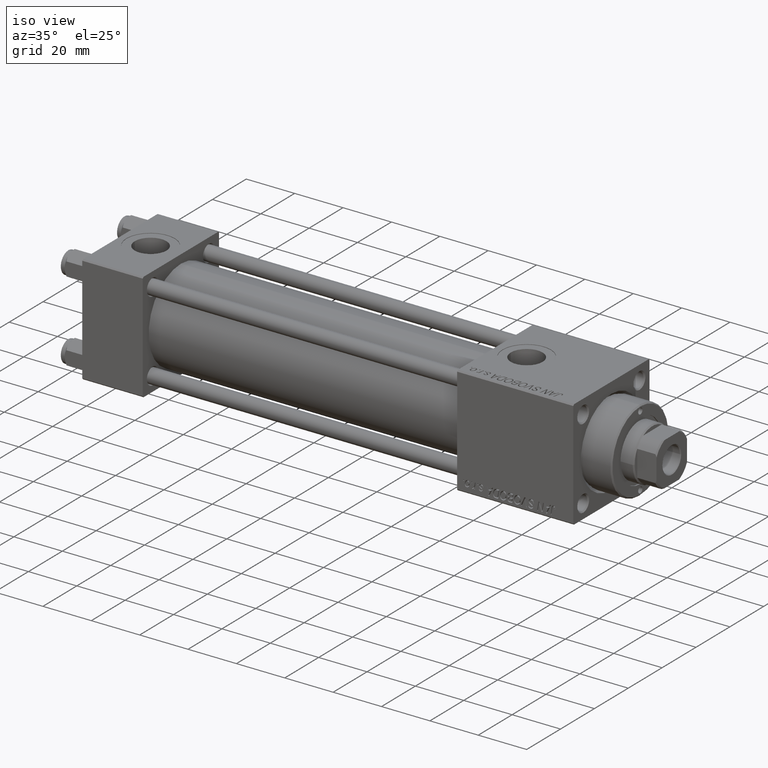
[diagram: clean part render]
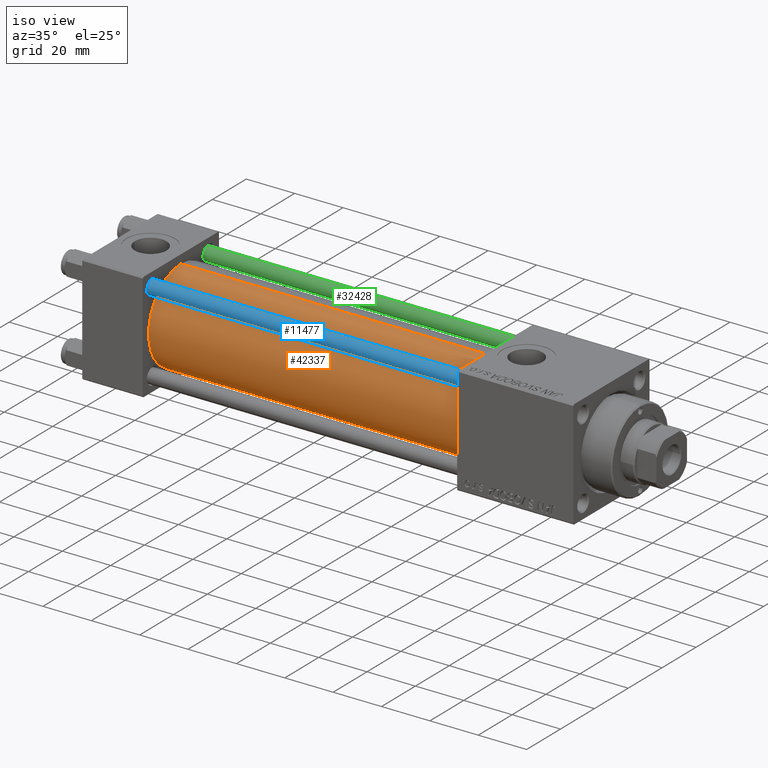
[diagram: same view with three faces highlighted in distinct colors, each labeled with its STEP entity id]
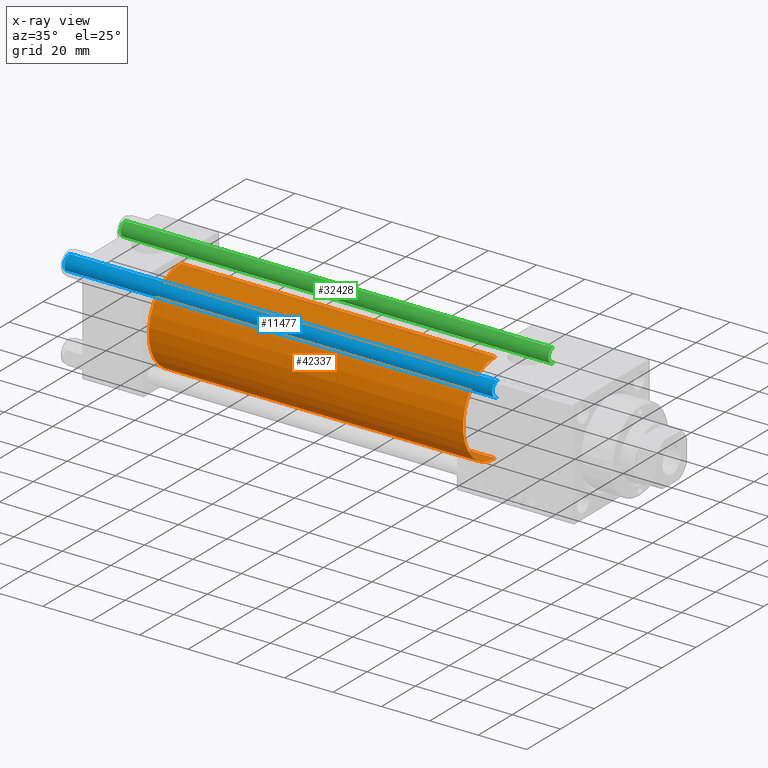
[diagram: x-ray of the same camera — body ghosted, the three highlighted faces saturated]
A machine part, iso view with three faces highlighted in distinct colors.
The next image is the same camera in x-ray (body ghosted, the three faces saturated) — at least one of them is partly hidden behind the body in this view.
Their STEP definitions:

[orange] entity #42337 — the highlighted cylindrical surface (partial cylindrical patch) has radius 19 mm, axis along (-1, -0, -0).
#149 = DIRECTION ( 'NONE',  ( -1.000000000000000000, -0.000000000000000000, -0.000000000000000000 ) ) ;
#629 = DIRECTION ( 'NONE',  ( 1.000000000000000000, 0.000000000000000000, 0.000000000000000000 ) ) ;
#1254 = ORIENTED_EDGE ( 'NONE', *, *, #14401, .F. ) ;
#3586 = AXIS2_PLACEMENT_3D ( 'NONE', #17115, #629, #34693 ) ;
#6762 = EDGE_LOOP ( 'NONE', ( #17592, #1254, #14535, #36498 ) ) ;
#10790 = VERTEX_POINT ( 'NONE', #11104 ) ;
#11104 = CARTESIAN_POINT ( 'NONE',  ( 155.0000000000000000, -2.752562955852396712E-16, -19.00000000000000000 ) ) ;
#11338 = LINE ( 'NONE', #27052, #12521 ) ;
#12011 = CARTESIAN_POINT ( 'NONE',  ( 24.99999999999999289, -2.602085213965210642E-15, 19.00000000000000000 ) ) ;
#12521 = VECTOR ( 'NONE', #32162, 1000.000000000000000 ) ;
#14401 = EDGE_CURVE ( 'NONE', #22424, #10790, #50265, .T. ) ;
#14535 = ORIENTED_EDGE ( 'NONE', *, *, #31868, .T. ) ;
#15344 = FACE_OUTER_BOUND ( 'NONE', #6762, .T. ) ;
#16233 = DIRECTION ( 'NONE',  ( 0.000000000000000000, 0.000000000000000000, 1.000000000000000000 ) ) ;
#17115 = CARTESIAN_POINT ( 'NONE',  ( 155.0000000000000000, -2.602085213965210642E-15, 0.000000000000000000 ) ) ;
#17592 = ORIENTED_EDGE ( 'NONE', *, *, #30774, .F. ) ;
#21382 = VERTEX_POINT ( 'NONE', #12011 ) ;
#22424 = VERTEX_POINT ( 'NONE', #51249 ) ;
#23295 = DIRECTION ( 'NONE',  ( 1.000000000000000000, -0.000000000000000000, 0.000000000000000000 ) ) ;
#25940 = LINE ( 'NONE', #45628, #34202 ) ;
#27052 = CARTESIAN_POINT ( 'NONE',  ( 155.0000000000000000, -2.752562955852396712E-16, -19.00000000000000000 ) ) ;
#27811 = DIRECTION ( 'NONE',  ( -1.000000000000000000, -0.000000000000000000, -0.000000000000000000 ) ) ;
#28071 = DIRECTION ( 'NONE',  ( 0.000000000000000000, 0.000000000000000000, 1.000000000000000000 ) ) ;
#28182 = CIRCLE ( 'NONE', #39409, 19.00000000000000000 ) ;
#29761 = CARTESIAN_POINT ( 'NONE',  ( 24.99999999999999289, -2.752562955852396712E-16, -19.00000000000000000 ) ) ;
#30774 = EDGE_CURVE ( 'NONE', #10790, #33103, #11338, .T. ) ;
#31859 = CYLINDRICAL_SURFACE ( 'NONE', #51220, 19.00000000000000000 ) ;
#31868 = EDGE_CURVE ( 'NONE', #22424, #21382, #25940, .T. ) ;
#32129 = CARTESIAN_POINT ( 'NONE',  ( 155.0000000000000000, -2.602085213965210642E-15, 0.000000000000000000 ) ) ;
#32162 = DIRECTION ( 'NONE',  ( -1.000000000000000000, -0.000000000000000000, -0.000000000000000000 ) ) ;
#32846 = EDGE_CURVE ( 'NONE', #21382, #33103, #28182, .T. ) ;
#33103 = VERTEX_POINT ( 'NONE', #29761 ) ;
#34202 = VECTOR ( 'NONE', #149, 1000.000000000000000 ) ;
#34693 = DIRECTION ( 'NONE',  ( 0.000000000000000000, 0.000000000000000000, -1.000000000000000000 ) ) ;
#36498 = ORIENTED_EDGE ( 'NONE', *, *, #32846, .T. ) ;
#39409 = AXIS2_PLACEMENT_3D ( 'NONE', #48492, #23295, #16233 ) ;
#42337 = ADVANCED_FACE ( 'NONE', ( #15344 ), #31859, .T. ) ;
#45628 = CARTESIAN_POINT ( 'NONE',  ( 155.0000000000000000, -2.602085213965210642E-15, 19.00000000000000000 ) ) ;
#48492 = CARTESIAN_POINT ( 'NONE',  ( 24.99999999999999289, -2.602085213965210642E-15, 0.000000000000000000 ) ) ;
#50265 = CIRCLE ( 'NONE', #3586, 19.00000000000000000 ) ;
#51220 = AXIS2_PLACEMENT_3D ( 'NONE', #32129, #27811, #28071 ) ;
#51249 = CARTESIAN_POINT ( 'NONE',  ( 155.0000000000000000, -2.602085213965210642E-15, 19.00000000000000000 ) ) ;

[blue] entity #11477 — the highlighted cylindrical surface (edge-blend (fillet) strip) has radius 3 mm, axis along (1, 0, -0).
#608 = CARTESIAN_POINT ( 'NONE',  ( 3.000000000000000444, 3.673940397442060361E-16, 177.5000000000000000 ) ) ;
#876 = DIRECTION ( 'NONE',  ( -0.000000000000000000, -0.000000000000000000, -1.000000000000000000 ) ) ;
#1246 = EDGE_LOOP ( 'NONE', ( #33724, #19455, #43204, #18865 ) ) ;
#1566 = CARTESIAN_POINT ( 'NONE',  ( -3.000000000000000444, 0.000000000000000000, 177.5000000000000000 ) ) ;
#2597 = FACE_OUTER_BOUND ( 'NONE', #1246, .T. ) ;
#2744 = DIRECTION ( 'NONE',  ( -0.000000000000000000, -0.000000000000000000, 1.000000000000000000 ) ) ;
#3023 = CIRCLE ( 'NONE', #27240, 3.000000000000000444 ) ;
#3629 = VERTEX_POINT ( 'NONE', #21258 ) ;
#5560 = VERTEX_POINT ( 'NONE', #608 ) ;
#5902 = VERTEX_POINT ( 'NONE', #17024 ) ;
#8326 = DIRECTION ( 'NONE',  ( 1.000000000000000000, 0.000000000000000000, 0.000000000000000000 ) ) ;
#10980 = DIRECTION ( 'NONE',  ( -1.000000000000000000, 0.000000000000000000, 0.000000000000000000 ) ) ;
#11477 = ADVANCED_FACE ( 'NONE', ( #2597 ), #19104, .T. ) ;
#13671 = EDGE_CURVE ( 'NONE', #5902, #3629, #39001, .T. ) ;
#17017 = EDGE_CURVE ( 'NONE', #5560, #5902, #50324, .T. ) ;
#17024 = CARTESIAN_POINT ( 'NONE',  ( 3.000000000000000444, 3.673940397442060361E-16, 0.5000000000000281997 ) ) ;
#18865 = ORIENTED_EDGE ( 'NONE', *, *, #44935, .F. ) ;
#19104 = CYLINDRICAL_SURFACE ( 'NONE', #19881, 3.000000000000000444 ) ;
#19455 = ORIENTED_EDGE ( 'NONE', *, *, #17017, .T. ) ;
#19881 = AXIS2_PLACEMENT_3D ( 'NONE', #31539, #48082, #10980 ) ;
#21258 = CARTESIAN_POINT ( 'NONE',  ( -3.000000000000000444, 0.000000000000000000, 0.5000000000000281997 ) ) ;
#22689 = VECTOR ( 'NONE', #24884, 1000.000000000000000 ) ;
#24884 = DIRECTION ( 'NONE',  ( -0.000000000000000000, -0.000000000000000000, -1.000000000000000000 ) ) ;
#27240 = AXIS2_PLACEMENT_3D ( 'NONE', #49465, #52715, #8326 ) ;
#29730 = CARTESIAN_POINT ( 'NONE',  ( 3.000000000000000444, 3.673940397442060361E-16, 178.0000000000000000 ) ) ;
#30891 = DIRECTION ( 'NONE',  ( 1.000000000000000000, 0.000000000000000000, 0.000000000000000000 ) ) ;
#31099 = VERTEX_POINT ( 'NONE', #1566 ) ;
#31539 = CARTESIAN_POINT ( 'NONE',  ( 0.000000000000000000, 0.000000000000000000, 178.0000000000000000 ) ) ;
#33614 = LINE ( 'NONE', #50410, #36614 ) ;
#33724 = ORIENTED_EDGE ( 'NONE', *, *, #51856, .T. ) ;
#36614 = VECTOR ( 'NONE', #876, 1000.000000000000000 ) ;
#39001 = CIRCLE ( 'NONE', #52835, 3.000000000000000444 ) ;
#39818 = CARTESIAN_POINT ( 'NONE',  ( 0.000000000000000000, 0.000000000000000000, 0.5000000000000281997 ) ) ;
#43204 = ORIENTED_EDGE ( 'NONE', *, *, #13671, .T. ) ;
#44935 = EDGE_CURVE ( 'NONE', #31099, #3629, #33614, .T. ) ;
#48082 = DIRECTION ( 'NONE',  ( -0.000000000000000000, -0.000000000000000000, -1.000000000000000000 ) ) ;
#49465 = CARTESIAN_POINT ( 'NONE',  ( 0.000000000000000000, 0.000000000000000000, 177.5000000000000000 ) ) ;
#50324 = LINE ( 'NONE', #29730, #22689 ) ;
#50410 = CARTESIAN_POINT ( 'NONE',  ( -3.000000000000000444, 0.000000000000000000, 178.0000000000000000 ) ) ;
#51856 = EDGE_CURVE ( 'NONE', #31099, #5560, #3023, .T. ) ;
#52715 = DIRECTION ( 'NONE',  ( 0.000000000000000000, 0.000000000000000000, -1.000000000000000000 ) ) ;
#52835 = AXIS2_PLACEMENT_3D ( 'NONE', #39818, #2744, #30891 ) ;

[green] entity #32428 — the highlighted cylindrical surface (edge-blend (fillet) strip) has radius 3 mm, axis along (-1, 0, 0).
#608 = CARTESIAN_POINT ( 'NONE',  ( 3.000000000000000444, 3.673940397442060361E-16, 177.5000000000000000 ) ) ;
#876 = DIRECTION ( 'NONE',  ( -0.000000000000000000, -0.000000000000000000, -1.000000000000000000 ) ) ;
#1566 = CARTESIAN_POINT ( 'NONE',  ( -3.000000000000000444, 0.000000000000000000, 177.5000000000000000 ) ) ;
#2571 = ORIENTED_EDGE ( 'NONE', *, *, #17017, .F. ) ;
#3322 = AXIS2_PLACEMENT_3D ( 'NONE', #25620, #38063, #5858 ) ;
#3629 = VERTEX_POINT ( 'NONE', #21258 ) ;
#4157 = EDGE_CURVE ( 'NONE', #3629, #5902, #17093, .T. ) ;
#5560 = VERTEX_POINT ( 'NONE', #608 ) ;
#5858 = DIRECTION ( 'NONE',  ( 1.000000000000000000, 0.000000000000000000, 0.000000000000000000 ) ) ;
#5902 = VERTEX_POINT ( 'NONE', #17024 ) ;
#6608 = ORIENTED_EDGE ( 'NONE', *, *, #35109, .T. ) ;
#7739 = ORIENTED_EDGE ( 'NONE', *, *, #4157, .T. ) ;
#12374 = CARTESIAN_POINT ( 'NONE',  ( 0.000000000000000000, 0.000000000000000000, 178.0000000000000000 ) ) ;
#13024 = AXIS2_PLACEMENT_3D ( 'NONE', #39301, #40579, #51759 ) ;
#17017 = EDGE_CURVE ( 'NONE', #5560, #5902, #50324, .T. ) ;
#17024 = CARTESIAN_POINT ( 'NONE',  ( 3.000000000000000444, 3.673940397442060361E-16, 0.5000000000000281997 ) ) ;
#17093 = CIRCLE ( 'NONE', #3322, 3.000000000000000444 ) ;
#21217 = AXIS2_PLACEMENT_3D ( 'NONE', #12374, #24836, #41352 ) ;
#21258 = CARTESIAN_POINT ( 'NONE',  ( -3.000000000000000444, 0.000000000000000000, 0.5000000000000281997 ) ) ;
#22689 = VECTOR ( 'NONE', #24884, 1000.000000000000000 ) ;
#23432 = EDGE_LOOP ( 'NONE', ( #2571, #6608, #49302, #7739 ) ) ;
#24836 = DIRECTION ( 'NONE',  ( -0.000000000000000000, -0.000000000000000000, -1.000000000000000000 ) ) ;
#24884 = DIRECTION ( 'NONE',  ( -0.000000000000000000, -0.000000000000000000, -1.000000000000000000 ) ) ;
#25620 = CARTESIAN_POINT ( 'NONE',  ( 0.000000000000000000, 0.000000000000000000, 0.5000000000000281997 ) ) ;
#29730 = CARTESIAN_POINT ( 'NONE',  ( 3.000000000000000444, 3.673940397442060361E-16, 178.0000000000000000 ) ) ;
#31099 = VERTEX_POINT ( 'NONE', #1566 ) ;
#32428 = ADVANCED_FACE ( 'NONE', ( #49478 ), #45435, .T. ) ;
#33614 = LINE ( 'NONE', #50410, #36614 ) ;
#35109 = EDGE_CURVE ( 'NONE', #5560, #31099, #48480, .T. ) ;
#36614 = VECTOR ( 'NONE', #876, 1000.000000000000000 ) ;
#38063 = DIRECTION ( 'NONE',  ( -0.000000000000000000, -0.000000000000000000, 1.000000000000000000 ) ) ;
#39301 = CARTESIAN_POINT ( 'NONE',  ( 0.000000000000000000, 0.000000000000000000, 177.5000000000000000 ) ) ;
#40579 = DIRECTION ( 'NONE',  ( 0.000000000000000000, 0.000000000000000000, -1.000000000000000000 ) ) ;
#41352 = DIRECTION ( 'NONE',  ( -1.000000000000000000, 0.000000000000000000, 0.000000000000000000 ) ) ;
#44935 = EDGE_CURVE ( 'NONE', #31099, #3629, #33614, .T. ) ;
#45435 = CYLINDRICAL_SURFACE ( 'NONE', #21217, 3.000000000000000444 ) ;
#48480 = CIRCLE ( 'NONE', #13024, 3.000000000000000444 ) ;
#49302 = ORIENTED_EDGE ( 'NONE', *, *, #44935, .T. ) ;
#49478 = FACE_OUTER_BOUND ( 'NONE', #23432, .T. ) ;
#50324 = LINE ( 'NONE', #29730, #22689 ) ;
#50410 = CARTESIAN_POINT ( 'NONE',  ( -3.000000000000000444, 0.000000000000000000, 178.0000000000000000 ) ) ;
#51759 = DIRECTION ( 'NONE',  ( 1.000000000000000000, 0.000000000000000000, 0.000000000000000000 ) ) ;